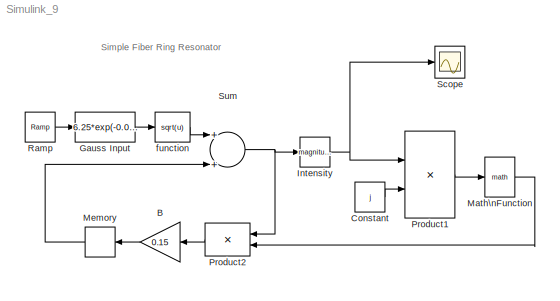
MODEL Simulink_9
KIND model
BLOCK [Gain] B
  Gain = 0.15
  SID = 1
BLOCK [Constant] Constant
  SID = 2
  Value = j
BLOCK [Fcn] Gauss Input
  Expr = 6.25*exp(-0.00000275*(u-500)^2)
  SID = 3
BLOCK [Math] Intensity
  Operator = magnitude^2
  Ports = [1, 1]
  SID = 4
BLOCK [Math] Math\nFunction
  Ports = [1, 1]
  SID = 5
BLOCK [Memory] Memory
  SID = 6
BLOCK [Product] Product1
  Ports = [2, 1]
  RndMeth = Floor
  SID = 7
BLOCK [Product] Product2
  Ports = [2, 1]
  RndMeth = Floor
  SID = 8
BLOCK [Reference] Ramp  REF=simulink/Sources/Ramp
  Ports = [0, 1]
  SID = 9
  SourceBlock = simulink/Sources/Ramp
  SourceProductBaseCode = SL
  SourceProductName = Simulink
  SourceType = Ramp
  VectorParams1D = on
  X0 = 0
  slope = 1
  start = 0
BLOCK [Scope] Scope
  Floating = off
  NumInputPorts = 1
  Ports = [1]
  SID = 10
  ScopeSpecificationString = C++SS(StrPVP('Location','[482, 60, 858, 609]'),StrPVP('Open','off'),MxPVP('AxesTitles',54,'struct(''axes1'',''%<SignalLabel>'')'),StrPVP('DataFormat','StructureWithTime'),StrPVP('LimitDataPoints','on'),StrPVP('Decimation','1'),StrPVP('BlockParamSampleInput','off'))
BLOCK [Sum] Sum
  Ports = [2, 1]
  SID = 11
BLOCK [Fcn] function
  Expr = sqrt(u)
  SID = 12
ANNOTATION (root): Simple Fiber Ring Resonator
LINE B:1 -> Memory:1
LINE Constant:1 -> Product1:2
LINE Gauss Input:1 -> function:1
NET Intensity:1 -> Product1:1, Scope:1
LINE Math\nFunction:1 -> Product2:2
LINE Memory:1 -> Sum:2
LINE Product1:1 -> Math\nFunction:1
LINE Product2:1 -> B:1
LINE Ramp:1 -> Gauss Input:1
NET Sum:1 -> Intensity:1, Product2:1
LINE function:1 -> Sum:1
note: NET lines group one-source signal fan-out (src -> all destinations, sorted); 1:1 wires keep LINE
